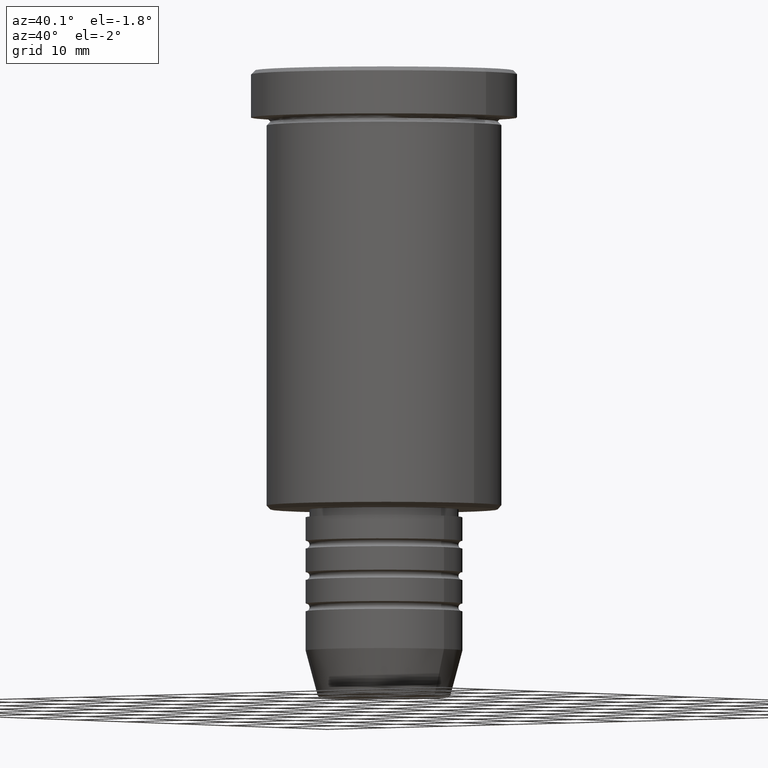
[diagram: clean part render]
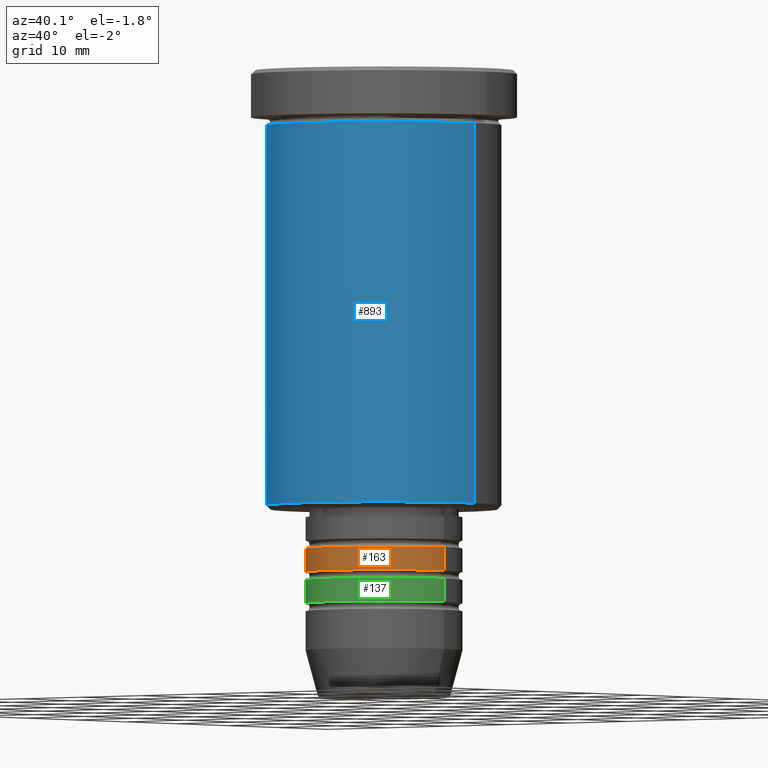
[diagram: same view with three faces highlighted in distinct colors, each labeled with its STEP entity id]
A machine part, auxiliary view with three faces highlighted in distinct colors.
Their STEP definitions:

[orange] entity #163 — the highlighted cylindrical surface (partial cylindrical patch) has radius 10 mm, axis along (-0, -0, 1).
#17 = CARTESIAN_POINT ( 'NONE',  ( 0.000000000000000000, 0.000000000000000000, -64.00000000000000000 ) ) ;
#88 = CARTESIAN_POINT ( 'NONE',  ( -10.00000000000000178, 1.224646799147353454E-15, 0.000000000000000000 ) ) ;
#101 = DIRECTION ( 'NONE',  ( 1.000000000000000000, 0.000000000000000000, 0.000000000000000000 ) ) ;
#113 = DIRECTION ( 'NONE',  ( -0.000000000000000000, -0.000000000000000000, 1.000000000000000000 ) ) ;
#163 = ADVANCED_FACE ( 'NONE', ( #826 ), #1092, .T. ) ;
#195 = DIRECTION ( 'NONE',  ( -0.000000000000000000, -0.000000000000000000, 1.000000000000000000 ) ) ;
#220 = VERTEX_POINT ( 'NONE', #1110 ) ;
#232 = ORIENTED_EDGE ( 'NONE', *, *, #408, .F. ) ;
#239 = EDGE_CURVE ( 'NONE', #790, #220, #261, .T. ) ;
#261 = CIRCLE ( 'NONE', #1085, 10.00000000000000178 ) ;
#265 = EDGE_LOOP ( 'NONE', ( #718, #856, #909, #232 ) ) ;
#338 = VERTEX_POINT ( 'NONE', #343 ) ;
#343 = CARTESIAN_POINT ( 'NONE',  ( 10.00000000000000000, 0.000000000000000000, -61.00000000000000711 ) ) ;
#352 = AXIS2_PLACEMENT_3D ( 'NONE', #575, #928, #389 ) ;
#389 = DIRECTION ( 'NONE',  ( 1.000000000000000000, 0.000000000000000000, 0.000000000000000000 ) ) ;
#408 = EDGE_CURVE ( 'NONE', #432, #338, #1082, .T. ) ;
#432 = VERTEX_POINT ( 'NONE', #1002 ) ;
#440 = EDGE_CURVE ( 'NONE', #790, #432, #476, .T. ) ;
#476 = LINE ( 'NONE', #88, #931 ) ;
#575 = CARTESIAN_POINT ( 'NONE',  ( 0.000000000000000000, 0.000000000000000000, -61.00000000000000711 ) ) ;
#625 = VECTOR ( 'NONE', #793, 1000.000000000000000 ) ;
#718 = ORIENTED_EDGE ( 'NONE', *, *, #440, .F. ) ;
#790 = VERTEX_POINT ( 'NONE', #1168 ) ;
#792 = EDGE_CURVE ( 'NONE', #220, #338, #1074, .T. ) ;
#793 = DIRECTION ( 'NONE',  ( -0.000000000000000000, -0.000000000000000000, 1.000000000000000000 ) ) ;
#826 = FACE_OUTER_BOUND ( 'NONE', #265, .T. ) ;
#856 = ORIENTED_EDGE ( 'NONE', *, *, #239, .T. ) ;
#863 = AXIS2_PLACEMENT_3D ( 'NONE', #983, #113, #1030 ) ;
#909 = ORIENTED_EDGE ( 'NONE', *, *, #792, .T. ) ;
#928 = DIRECTION ( 'NONE',  ( -0.000000000000000000, -0.000000000000000000, 1.000000000000000000 ) ) ;
#931 = VECTOR ( 'NONE', #940, 1000.000000000000000 ) ;
#940 = DIRECTION ( 'NONE',  ( -0.000000000000000000, -0.000000000000000000, 1.000000000000000000 ) ) ;
#983 = CARTESIAN_POINT ( 'NONE',  ( 0.000000000000000000, 0.000000000000000000, 0.000000000000000000 ) ) ;
#1002 = CARTESIAN_POINT ( 'NONE',  ( -10.00000000000000000, 1.224646799147353256E-15, -61.00000000000000711 ) ) ;
#1030 = DIRECTION ( 'NONE',  ( 1.000000000000000000, 0.000000000000000000, 0.000000000000000000 ) ) ;
#1074 = LINE ( 'NONE', #1172, #625 ) ;
#1082 = CIRCLE ( 'NONE', #352, 10.00000000000000000 ) ;
#1085 = AXIS2_PLACEMENT_3D ( 'NONE', #17, #195, #101 ) ;
#1092 = CYLINDRICAL_SURFACE ( 'NONE', #863, 10.00000000000000178 ) ;
#1110 = CARTESIAN_POINT ( 'NONE',  ( 10.00000000000000178, 0.000000000000000000, -64.00000000000000000 ) ) ;
#1168 = CARTESIAN_POINT ( 'NONE',  ( -10.00000000000000178, 1.224646799147353454E-15, -64.00000000000000000 ) ) ;
#1172 = CARTESIAN_POINT ( 'NONE',  ( 10.00000000000000178, 0.000000000000000000, 0.000000000000000000 ) ) ;

[blue] entity #893 — the highlighted cylindrical surface (partial cylindrical patch) has radius 15 mm, axis along (-0, -0, 1).
#4 = CARTESIAN_POINT ( 'NONE',  ( 0.000000000000000000, 0.000000000000000000, -55.49999999999998579 ) ) ;
#9 = AXIS2_PLACEMENT_3D ( 'NONE', #652, #281, #192 ) ;
#93 = CARTESIAN_POINT ( 'NONE',  ( -15.00000000000000000, 1.836970198721029589E-15, -6.999999999999995559 ) ) ;
#100 = CARTESIAN_POINT ( 'NONE',  ( -15.00000000000000000, 1.836970198721029589E-15, -55.49999999999998579 ) ) ;
#120 = VERTEX_POINT ( 'NONE', #93 ) ;
#131 = CARTESIAN_POINT ( 'NONE',  ( 15.00000000000000000, 0.000000000000000000, -6.999999999999995559 ) ) ;
#192 = DIRECTION ( 'NONE',  ( 1.000000000000000000, 0.000000000000000000, 0.000000000000000000 ) ) ;
#224 = AXIS2_PLACEMENT_3D ( 'NONE', #911, #334, #1150 ) ;
#281 = DIRECTION ( 'NONE',  ( -0.000000000000000000, -0.000000000000000000, 1.000000000000000000 ) ) ;
#298 = CARTESIAN_POINT ( 'NONE',  ( 15.00000000000000000, 0.000000000000000000, -55.49999999999998579 ) ) ;
#303 = DIRECTION ( 'NONE',  ( -1.000000000000000000, 0.000000000000000000, 0.000000000000000000 ) ) ;
#334 = DIRECTION ( 'NONE',  ( -0.000000000000000000, -0.000000000000000000, 1.000000000000000000 ) ) ;
#368 = DIRECTION ( 'NONE',  ( -0.000000000000000000, -0.000000000000000000, 1.000000000000000000 ) ) ;
#373 = VECTOR ( 'NONE', #768, 1000.000000000000000 ) ;
#386 = VERTEX_POINT ( 'NONE', #131 ) ;
#421 = EDGE_LOOP ( 'NONE', ( #698, #547, #1063, #901 ) ) ;
#436 = VERTEX_POINT ( 'NONE', #100 ) ;
#472 = VECTOR ( 'NONE', #1053, 1000.000000000000000 ) ;
#499 = CARTESIAN_POINT ( 'NONE',  ( -15.00000000000000000, 1.836970198721029589E-15, 0.000000000000000000 ) ) ;
#547 = ORIENTED_EDGE ( 'NONE', *, *, #1012, .T. ) ;
#652 = CARTESIAN_POINT ( 'NONE',  ( 0.000000000000000000, 0.000000000000000000, 0.000000000000000000 ) ) ;
#677 = VERTEX_POINT ( 'NONE', #298 ) ;
#690 = EDGE_CURVE ( 'NONE', #436, #120, #956, .T. ) ;
#698 = ORIENTED_EDGE ( 'NONE', *, *, #690, .F. ) ;
#768 = DIRECTION ( 'NONE',  ( -0.000000000000000000, -0.000000000000000000, 1.000000000000000000 ) ) ;
#778 = LINE ( 'NONE', #785, #472 ) ;
#783 = CIRCLE ( 'NONE', #934, 15.00000000000000000 ) ;
#785 = CARTESIAN_POINT ( 'NONE',  ( 15.00000000000000000, 0.000000000000000000, 0.000000000000000000 ) ) ;
#817 = EDGE_CURVE ( 'NONE', #120, #386, #819, .T. ) ;
#819 = CIRCLE ( 'NONE', #224, 15.00000000000000000 ) ;
#820 = CYLINDRICAL_SURFACE ( 'NONE', #9, 15.00000000000000000 ) ;
#893 = ADVANCED_FACE ( 'NONE', ( #1021 ), #820, .T. ) ;
#901 = ORIENTED_EDGE ( 'NONE', *, *, #817, .F. ) ;
#911 = CARTESIAN_POINT ( 'NONE',  ( 0.000000000000000000, 0.000000000000000000, -6.999999999999995559 ) ) ;
#934 = AXIS2_PLACEMENT_3D ( 'NONE', #4, #368, #303 ) ;
#956 = LINE ( 'NONE', #499, #373 ) ;
#1012 = EDGE_CURVE ( 'NONE', #436, #677, #783, .T. ) ;
#1021 = FACE_OUTER_BOUND ( 'NONE', #421, .T. ) ;
#1053 = DIRECTION ( 'NONE',  ( -0.000000000000000000, -0.000000000000000000, 1.000000000000000000 ) ) ;
#1063 = ORIENTED_EDGE ( 'NONE', *, *, #1098, .T. ) ;
#1098 = EDGE_CURVE ( 'NONE', #677, #386, #778, .T. ) ;
#1150 = DIRECTION ( 'NONE',  ( 1.000000000000000000, 0.000000000000000000, 0.000000000000000000 ) ) ;

[green] entity #137 — the highlighted cylindrical surface (partial cylindrical patch) has radius 10 mm, axis along (-0, -0, 1).
#8 = ORIENTED_EDGE ( 'NONE', *, *, #990, .F. ) ;
#36 = LINE ( 'NONE', #679, #417 ) ;
#39 = CARTESIAN_POINT ( 'NONE',  ( 0.000000000000000000, 0.000000000000000000, -65.00000000000000000 ) ) ;
#40 = CARTESIAN_POINT ( 'NONE',  ( -10.00000000000000178, 1.224646799147353454E-15, -68.00000000000000000 ) ) ;
#50 = DIRECTION ( 'NONE',  ( -0.000000000000000000, -0.000000000000000000, 1.000000000000000000 ) ) ;
#71 = FACE_OUTER_BOUND ( 'NONE', #200, .T. ) ;
#85 = CARTESIAN_POINT ( 'NONE',  ( -10.00000000000000178, 1.224646799147353454E-15, 0.000000000000000000 ) ) ;
#96 = EDGE_CURVE ( 'NONE', #770, #292, #493, .T. ) ;
#98 = ORIENTED_EDGE ( 'NONE', *, *, #199, .T. ) ;
#106 = CIRCLE ( 'NONE', #805, 10.00000000000000178 ) ;
#137 = ADVANCED_FACE ( 'NONE', ( #71 ), #1170, .T. ) ;
#175 = DIRECTION ( 'NONE',  ( 1.000000000000000000, 0.000000000000000000, 0.000000000000000000 ) ) ;
#199 = EDGE_CURVE ( 'NONE', #662, #429, #106, .T. ) ;
#200 = EDGE_LOOP ( 'NONE', ( #8, #98, #1128, #1158 ) ) ;
#208 = DIRECTION ( 'NONE',  ( -0.000000000000000000, -0.000000000000000000, 1.000000000000000000 ) ) ;
#267 = CARTESIAN_POINT ( 'NONE',  ( 0.000000000000000000, 0.000000000000000000, 0.000000000000000000 ) ) ;
#292 = VERTEX_POINT ( 'NONE', #1081 ) ;
#300 = CARTESIAN_POINT ( 'NONE',  ( 0.000000000000000000, 0.000000000000000000, -68.00000000000000000 ) ) ;
#316 = VECTOR ( 'NONE', #378, 1000.000000000000000 ) ;
#370 = CARTESIAN_POINT ( 'NONE',  ( 10.00000000000000178, 0.000000000000000000, -68.00000000000000000 ) ) ;
#378 = DIRECTION ( 'NONE',  ( -0.000000000000000000, -0.000000000000000000, 1.000000000000000000 ) ) ;
#417 = VECTOR ( 'NONE', #50, 1000.000000000000000 ) ;
#429 = VERTEX_POINT ( 'NONE', #370 ) ;
#430 = DIRECTION ( 'NONE',  ( 1.000000000000000000, 0.000000000000000000, 0.000000000000000000 ) ) ;
#473 = AXIS2_PLACEMENT_3D ( 'NONE', #267, #1000, #175 ) ;
#493 = CIRCLE ( 'NONE', #552, 10.00000000000000000 ) ;
#540 = CARTESIAN_POINT ( 'NONE',  ( -10.00000000000000000, 1.224646799147353256E-15, -65.00000000000000000 ) ) ;
#552 = AXIS2_PLACEMENT_3D ( 'NONE', #39, #707, #430 ) ;
#634 = EDGE_CURVE ( 'NONE', #429, #292, #36, .T. ) ;
#662 = VERTEX_POINT ( 'NONE', #40 ) ;
#679 = CARTESIAN_POINT ( 'NONE',  ( 10.00000000000000178, 0.000000000000000000, 0.000000000000000000 ) ) ;
#707 = DIRECTION ( 'NONE',  ( -0.000000000000000000, -0.000000000000000000, 1.000000000000000000 ) ) ;
#733 = LINE ( 'NONE', #85, #316 ) ;
#770 = VERTEX_POINT ( 'NONE', #540 ) ;
#805 = AXIS2_PLACEMENT_3D ( 'NONE', #300, #208, #851 ) ;
#851 = DIRECTION ( 'NONE',  ( 1.000000000000000000, 0.000000000000000000, 0.000000000000000000 ) ) ;
#990 = EDGE_CURVE ( 'NONE', #662, #770, #733, .T. ) ;
#1000 = DIRECTION ( 'NONE',  ( -0.000000000000000000, -0.000000000000000000, 1.000000000000000000 ) ) ;
#1081 = CARTESIAN_POINT ( 'NONE',  ( 10.00000000000000000, 0.000000000000000000, -65.00000000000000000 ) ) ;
#1128 = ORIENTED_EDGE ( 'NONE', *, *, #634, .T. ) ;
#1158 = ORIENTED_EDGE ( 'NONE', *, *, #96, .F. ) ;
#1170 = CYLINDRICAL_SURFACE ( 'NONE', #473, 10.00000000000000178 ) ;